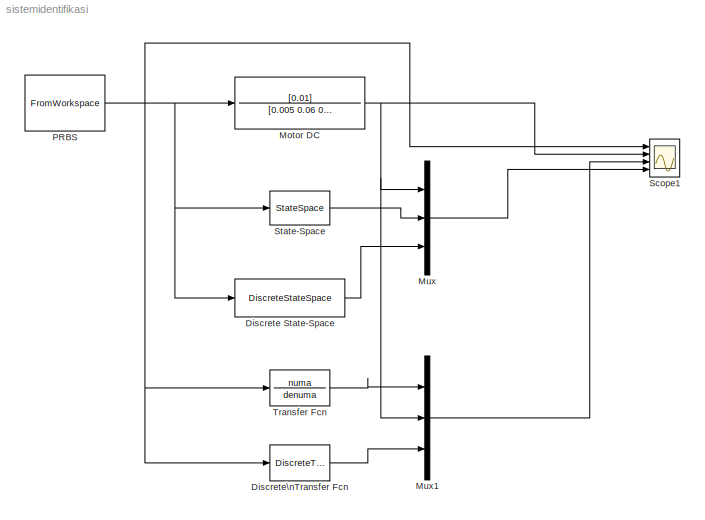
MODEL sistemidentifikasi
KIND model
BLOCK [DiscreteStateSpace] Discrete State-Space
  A = [0.9997   -0.01947   0.001716;   0.04475     0.8918    0.05751; -0.006716  -0.004705     0.9936]
  B = [0.002085; 0.01668\n; -0.0002232]
  C = [ -0.8353  0.09902   -0.834]
  D = 0
  SID = 10
  SampleTime = 0.01
BLOCK [DiscreteTransferFcn] Discrete\nTransfer Fcn
  Denominator = denumd
  InputPortMap = u0
  InputProcessing = Columns as channels (frame based)
  LockScale = on
  Numerator = numd
  Ports = [1, 1]
  RndMeth = Nearest
  SID = 14
  SampleTime = 0.01
  a0EqualsOne = on
BLOCK [TransferFcn] Motor DC
  Denominator = [0.005 0.06 0.1001]
  Numerator = [0.01]
  SID = 5
BLOCK [Mux] Mux
  DisplayOption = bar
  Inputs = 3
  Ports = [3, 1]
  SID = 12
BLOCK [Mux] Mux1
  DisplayOption = bar
  Inputs = 3
  Ports = [3, 1]
  SID = 15
BLOCK [FromWorkspace] PRBS
  SID = 1
  SampleTime = 0.01
  VariableName = SinyalGenerator
BLOCK [Scope] Scope1
  NumInputPorts = 4
  Ports = [4]
  SID = 3
  ScopeSpecificationString = Simulink.scopes.TimeScopeBlockCfg('CurrentConfiguration', extmgr.ConfigurationSet(extmgr.Configuration('Core','General UI',true),extmgr.Configuration('Core','Source UI',true),extmgr.Configuration('Sources','WiredSimulink',true,'DataLogging',true,'DataLoggingVariableName','IdentData','DataLoggingSaveFormat','StructureWithTime','DataLoggingDecimation','1','DataLoggingDecimateData',true),extmgr.Confi...<+3810ch>
BLOCK [StateSpace] State-Space
  A = [0.01614    -2.06   0.2328; 4.756   -11.39      6.1;  -0.6622  -0.5065  -0.6299]
  B = [0.226; 1.76;  -0.01738]
  C = [ -0.8353  0.09902   -0.834]
  D = [0]
  Ports = [1, 1]
  SID = 9
  X0 = 0
BLOCK [TransferFcn] Transfer Fcn
  Denominator = denuma
  Numerator = numa
  SID = 13
LINE Discrete State-Space:1 -> Mux:3
LINE Discrete\nTransfer Fcn:1 -> Mux1:3
NET Motor DC:1 -> Mux1:2, Mux:1, Scope1:2
LINE Mux1:1 -> Scope1:3
LINE Mux:1 -> Scope1:4
NET PRBS:1 -> Discrete State-Space:1, Discrete\nTransfer Fcn:1, Motor DC:1, Scope1:1, State-Space:1, Transfer Fcn:1
LINE State-Space:1 -> Mux:2
LINE Transfer Fcn:1 -> Mux1:1
note: NET lines group one-source signal fan-out (src -> all destinations, sorted); 1:1 wires keep LINE
